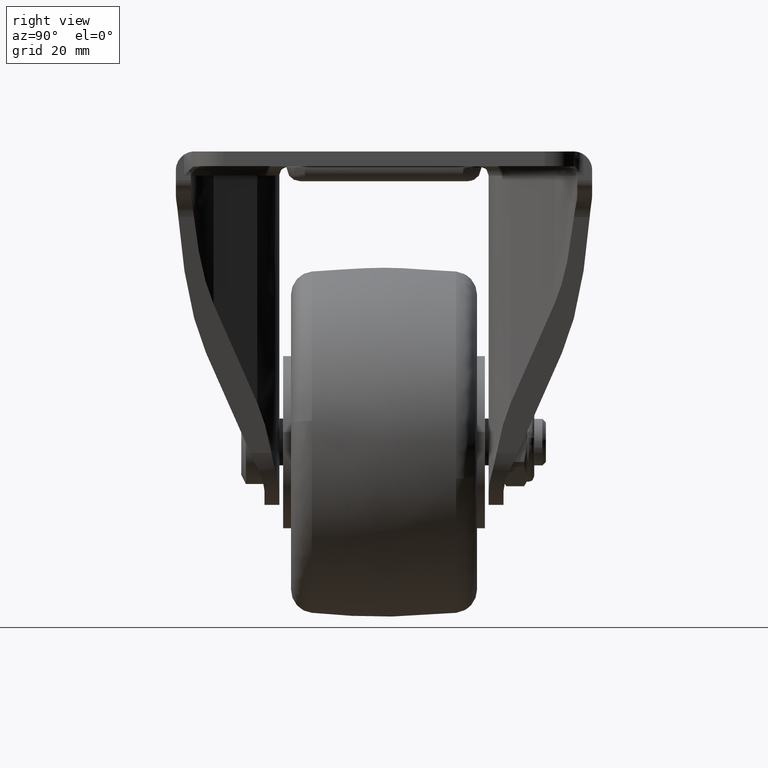
[diagram: clean part render]
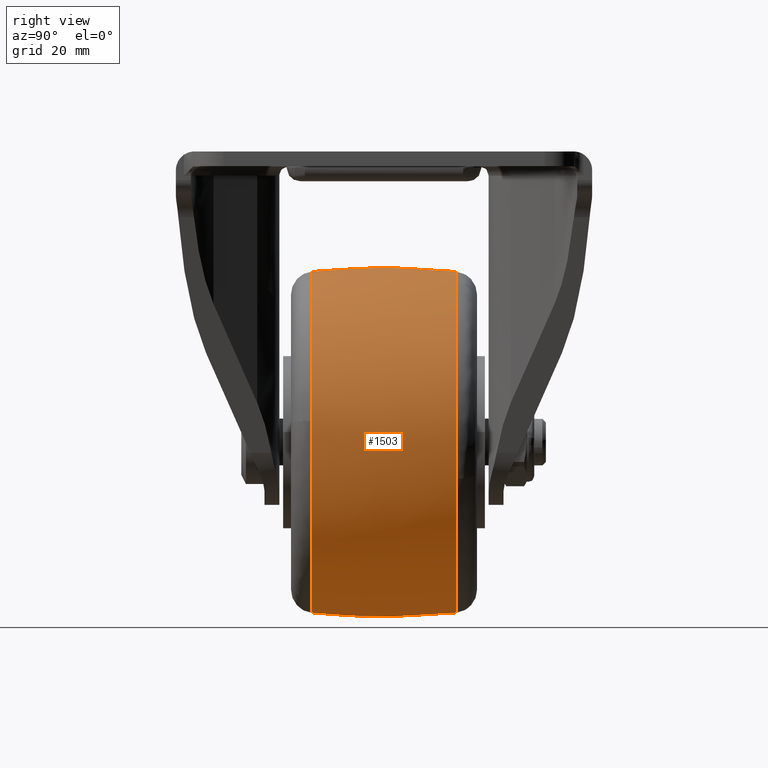
[diagram: same view with one face highlighted and labeled with its STEP entity id]
A machine part, right view. The second image highlights one B-rep face of the part: STEP entity #1503.
In plain terms, the highlighted face is a freeform B-spline surface patch.
Its self-contained STEP definition (entity closure, byte-faithful):
#1058=CARTESIAN_POINT('',(36.405869162965359,-15.517249322232800,-57.900869176845553));
#1059=VERTEX_POINT('',#1058);
#1073=CARTESIAN_POINT('',(0.0,-15.517248015191800,-25.804775498560051));
#1074=VERTEX_POINT('',#1073);
#1075=CARTESIAN_POINT('',(0.0,-15.517248015191800,-25.804775498560051));
#1076=CARTESIAN_POINT('',(32.351191039125787,-15.517247881439276,-25.804775659839130));
#1077=CARTESIAN_POINT('',(36.405869162965359,-15.517249322232800,-57.900869176845546));
#1085=(BOUNDED_CURVE()B_SPLINE_CURVE(2,(#1075,#1076,#1077),.UNSPECIFIED.,.F.,.U.)B_SPLINE_CURVE_WITH_KNOTS((3,3),(0.0,0.228321257227900),.UNSPECIFIED.)CURVE()GEOMETRIC_REPRESENTATION_ITEM()RATIONAL_B_SPLINE_CURVE((1.0,0.732505008187944,0.953608359037452))REPRESENTATION_ITEM(''));
#1086=EDGE_CURVE('',#1074,#1059,#1085,.T.);
#1088=CARTESIAN_POINT('',(-36.449793876648862,-15.517253867070529,-66.736978037823619));
#1089=VERTEX_POINT('',#1088);
#1090=CARTESIAN_POINT('',(-36.449793876648862,-15.517253867070529,-66.736978037823619));
#1091=CARTESIAN_POINT('',(-36.695223912469523,-15.517253716143598,-64.625597341269938));
#1092=CARTESIAN_POINT('',(-36.695223929979399,-15.517253546656450,-62.499999933572582));
#1093=CARTESIAN_POINT('',(-36.695224232260806,-15.517250620717078,-25.804775467270272));
#1094=CARTESIAN_POINT('',(0.0,-15.517248015191800,-25.804775498560051));
#1102=(BOUNDED_CURVE()B_SPLINE_CURVE(2,(#1090,#1091,#1092,#1093,#1094),.UNSPECIFIED.,.F.,.U.)B_SPLINE_CURVE_WITH_KNOTS((3,2,3),(0.730000035775448,0.750000000000000,1.0),.UNSPECIFIED.)CURVE()GEOMETRIC_REPRESENTATION_ITEM()RATIONAL_B_SPLINE_CURVE((0.956886188605427,0.976568584408469,1.0,0.707106781186548,1.0))REPRESENTATION_ITEM(''));
#1103=EDGE_CURVE('',#1089,#1074,#1102,.T.);
#1105=CARTESIAN_POINT('',(0.0,-15.517251615525330,-99.195224126982296));
#1106=VERTEX_POINT('',#1105);
#1120=CARTESIAN_POINT('',(12.993981891003260,-15.517251239581840,-96.817571707790449));
#1121=VERTEX_POINT('',#1120);
#1122=CARTESIAN_POINT('',(12.993981891003266,-15.517251239581846,-96.817571707790449));
#1123=CARTESIAN_POINT('',(6.714523171413977,-15.517251485874077,-99.195222960756027));
#1124=CARTESIAN_POINT('',(0.0,-15.517251615525330,-99.195224126982296));
#1132=(BOUNDED_CURVE()B_SPLINE_CURVE(2,(#1122,#1123,#1124),.UNSPECIFIED.,.F.,.U.)B_SPLINE_CURVE_WITH_KNOTS((3,3),(0.439864366935184,0.500000000000000),.UNSPECIFIED.)CURVE()GEOMETRIC_REPRESENTATION_ITEM()RATIONAL_B_SPLINE_CURVE((0.892987466017451,0.929546723465045,1.0))REPRESENTATION_ITEM(''));
#1133=EDGE_CURVE('',#1121,#1106,#1132,.T.);
#1184=CARTESIAN_POINT('',(36.405869162965359,-15.517249322232800,-57.900869176845546));
#1185=CARTESIAN_POINT('',(36.695222014820310,-15.517249434924160,-60.191332283339115));
#1186=CARTESIAN_POINT('',(36.695222087570322,-15.517249548538340,-62.499999913662421));
#1187=CARTESIAN_POINT('',(36.695222886182009,-15.517250795735674,-87.843351047338032));
#1188=CARTESIAN_POINT('',(12.993981891003266,-15.517251239581846,-96.817571707790449));
#1196=(BOUNDED_CURVE()B_SPLINE_CURVE(2,(#1184,#1185,#1186,#1187,#1188),.UNSPECIFIED.,.F.,.U.)B_SPLINE_CURVE_WITH_KNOTS((3,2,3),(0.228321257227900,0.250000000000000,0.439864366935184),.UNSPECIFIED.)CURVE()GEOMETRIC_REPRESENTATION_ITEM()RATIONAL_B_SPLINE_CURVE((0.953608359037452,0.974601772998603,1.0,0.777560057721503,0.892987466017451))REPRESENTATION_ITEM(''));
#1197=EDGE_CURVE('',#1059,#1121,#1196,.T.);
#1226=CARTESIAN_POINT('',(35.840523833993487,15.517243523845330,-70.373756215115435));
#1227=VERTEX_POINT('',#1226);
#1228=CARTESIAN_POINT('',(0.0,15.517244941485520,-99.195222311844901));
#1229=VERTEX_POINT('',#1228);
#1230=CARTESIAN_POINT('',(35.840523833993494,15.517243523845337,-70.373756215115435));
#1231=CARTESIAN_POINT('',(29.508776406267614,15.517244941485522,-99.195222311844901));
#1232=CARTESIAN_POINT('',(0.0,15.517244941485520,-99.195222311844901));
#1240=(BOUNDED_CURVE()B_SPLINE_CURVE(2,(#1230,#1231,#1232),.UNSPECIFIED.,.F.,.U.)B_SPLINE_CURVE_WITH_KNOTS((3,3),(0.286726874110098,0.500000000000000),.UNSPECIFIED.)CURVE()GEOMETRIC_REPRESENTATION_ITEM()RATIONAL_B_SPLINE_CURVE((0.926585914067485,0.750134990686800,1.0))REPRESENTATION_ITEM(''));
#1241=EDGE_CURVE('',#1227,#1229,#1240,.T.);
#1243=CARTESIAN_POINT('',(-36.449792078363529,15.517247110264440,-66.736977862260062));
#1244=VERTEX_POINT('',#1243);
#1258=CARTESIAN_POINT('',(-36.509947206247929,15.517246384845301,-58.817204718405861));
#1259=VERTEX_POINT('',#1258);
#1260=CARTESIAN_POINT('',(-36.449792078363529,15.517247110264440,-66.736977862260062));
#1261=CARTESIAN_POINT('',(-36.695221735445934,15.517246932747428,-64.625597420147386));
#1262=CARTESIAN_POINT('',(-36.695221389700812,15.517246736933870,-62.500000267480942));
#1263=CARTESIAN_POINT('',(-36.695221089424905,15.517246566871908,-60.653942134192192));
#1264=CARTESIAN_POINT('',(-36.509947206247929,15.517246384845294,-58.817204718405861));
#1272=(BOUNDED_CURVE()B_SPLINE_CURVE(2,(#1260,#1261,#1262,#1263,#1264),.UNSPECIFIED.,.F.,.U.)B_SPLINE_CURVE_WITH_KNOTS((3,2,3),(0.730000035622184,0.750000000000000,0.767423442782457),.UNSPECIFIED.)CURVE()GEOMETRIC_REPRESENTATION_ITEM()RATIONAL_B_SPLINE_CURVE((0.956886188303766,0.976568584228909,1.0,0.979587167042536,0.962019628701570))REPRESENTATION_ITEM(''));
#1273=EDGE_CURVE('',#1244,#1259,#1272,.T.);
#1367=CARTESIAN_POINT('',(0.0,15.517241397116400,-25.804779828798051));
#1368=VERTEX_POINT('',#1367);
#1369=CARTESIAN_POINT('',(0.0,15.517241397116400,-25.804779828798051));
#1370=CARTESIAN_POINT('',(36.695220171201946,15.517241397116408,-25.804779828798054));
#1371=CARTESIAN_POINT('',(36.695220171201953,15.517243169300960,-62.500001070321481));
#1372=CARTESIAN_POINT('',(36.695220171201946,15.517243361671600,-66.483267300864668));
#1373=CARTESIAN_POINT('',(35.840523833993494,15.517243523845337,-70.373756215115435));
#1381=(BOUNDED_CURVE()B_SPLINE_CURVE(2,(#1369,#1370,#1371,#1372,#1373),.UNSPECIFIED.,.F.,.U.)B_SPLINE_CURVE_WITH_KNOTS((3,2,3),(0.0,0.250000000000000,0.286726874110098),.UNSPECIFIED.)CURVE()GEOMETRIC_REPRESENTATION_ITEM()RATIONAL_B_SPLINE_CURVE((1.0,0.707106781186548,1.0,0.956971790499748,0.926585914067485))REPRESENTATION_ITEM(''));
#1382=EDGE_CURVE('',#1368,#1227,#1381,.T.);
#1416=CARTESIAN_POINT('',(-36.509947206247929,15.517246384845294,-58.817204718405861));
#1417=CARTESIAN_POINT('',(-33.179949842762490,15.517243640656181,-25.804779972441864));
#1418=CARTESIAN_POINT('',(0.0,15.517241397116400,-25.804779828798051));
#1426=(BOUNDED_CURVE()B_SPLINE_CURVE(2,(#1416,#1417,#1418),.UNSPECIFIED.,.F.,.U.)B_SPLINE_CURVE_WITH_KNOTS((3,3),(0.767423442782457,1.0),.UNSPECIFIED.)CURVE()GEOMETRIC_REPRESENTATION_ITEM()RATIONAL_B_SPLINE_CURVE((0.962019628701570,0.727519614144011,1.0))REPRESENTATION_ITEM(''));
#1427=EDGE_CURVE('',#1259,#1368,#1426,.T.);
#1432=CARTESIAN_POINT('',(-36.282641195028837,17.057819787561680,-66.717554832738287));
#1433=CARTESIAN_POINT('',(-38.222043254461973,-0.000003390297983,-66.942994168436528));
#1434=CARTESIAN_POINT('',(-36.282640434073301,-17.057826480471185,-66.717554744283532));
#1435=CARTESIAN_POINT('',(-36.526946503292031,17.057819787561687,-64.615853208624685));
#1436=CARTESIAN_POINT('',(-38.479407320367116,-0.000003390297982,-64.728951096074709));
#1437=CARTESIAN_POINT('',(-36.526945737212664,-17.057826480471181,-64.615853164248904));
#1438=CARTESIAN_POINT('',(-36.526946503292031,17.057819787561687,-62.500000000000014));
#1439=CARTESIAN_POINT('',(-38.479407320367109,-0.000003390297979,-62.500000000000000));
#1440=CARTESIAN_POINT('',(-36.526945737212671,-17.057826480471181,-62.500000000000014));
#1441=CARTESIAN_POINT('',(-36.526946503292031,17.057819787561687,-25.973053496707976));
#1442=CARTESIAN_POINT('',(-38.479407320367123,-0.000003390297980,-24.020592679632884));
#1443=CARTESIAN_POINT('',(-36.526945737212678,-17.057826480471185,-25.973054262787322));
#1444=CARTESIAN_POINT('',(0.0,17.057819787561687,-25.973053496707969));
#1445=CARTESIAN_POINT('',(0.0,-0.000003390297979,-24.020592679632884));
#1446=CARTESIAN_POINT('',(0.0,-17.057826480471181,-25.973054262787322));
#1447=CARTESIAN_POINT('',(36.526946503292031,17.057819787561687,-25.973053496707976));
#1448=CARTESIAN_POINT('',(38.479407320367123,-0.000003390297980,-24.020592679632884));
#1449=CARTESIAN_POINT('',(36.526945737212678,-17.057826480471185,-25.973054262787322));
#1450=CARTESIAN_POINT('',(36.526946503292031,17.057819787561687,-62.500000000000014));
#1451=CARTESIAN_POINT('',(38.479407320367109,-0.000003390297979,-62.500000000000000));
#1452=CARTESIAN_POINT('',(36.526945737212671,-17.057826480471181,-62.500000000000014));
#1453=CARTESIAN_POINT('',(36.526946503292031,17.057819787561687,-99.026946503292024));
#1454=CARTESIAN_POINT('',(38.479407320367123,-0.000003390297980,-100.979407320367120));
#1455=CARTESIAN_POINT('',(36.526945737212678,-17.057826480471185,-99.026945737212685));
#1456=CARTESIAN_POINT('',(0.0,17.057819787561687,-99.026946503292038));
#1457=CARTESIAN_POINT('',(0.0,-0.000003390297979,-100.979407320367100));
#1458=CARTESIAN_POINT('',(0.0,-17.057826480471181,-99.026945737212671));
#1466=(BOUNDED_SURFACE()B_SPLINE_SURFACE(2,2,((#1432,#1435,#1438,#1441,#1444,#1447,#1450,#1453,#1456),(#1433,#1436,#1439,#1442,#1445,#1448,#1451,#1454,#1457),(#1434,#1437,#1440,#1443,#1446,#1449,#1452,#1455,#1458)),.UNSPECIFIED.,.F.,.F.,.U.)B_SPLINE_SURFACE_WITH_KNOTS((3,3),(3,2,2,2,3),(0.0,34.226660885250212),(0.0,4.970561711536941,67.102596067501125,129.234630423465290,191.366664779429500),.UNSPECIFIED.)GEOMETRIC_REPRESENTATION_ITEM()RATIONAL_B_SPLINE_SURFACE(((0.839999910101653,0.857278070373645,0.877847307975337,0.620731784315716,0.877847307975337,0.620731784315716,0.877847307975337,0.620731784315716,0.877847307975337),(0.834550810027260,0.851716886448658,0.872152690900182,0.616705081965613,0.872152690900182,0.616705081965613,0.872152690900182,0.616705081965613,0.872152690900182),(0.839999912253655,0.857278072569913,0.877847310224300,0.620731785905974,0.877847310224300,0.620731785905974,0.877847310224300,0.620731785905974,0.877847310224300)))REPRESENTATION_ITEM('')SURFACE());
#1467=ORIENTED_EDGE('',*,*,#1103,.T.);
#1468=ORIENTED_EDGE('',*,*,#1086,.T.);
#1469=ORIENTED_EDGE('',*,*,#1197,.T.);
#1470=ORIENTED_EDGE('',*,*,#1133,.T.);
#1471=CARTESIAN_POINT('',(0.0,15.517244941485517,-99.195222311844915));
#1472=CARTESIAN_POINT('',(0.0,-0.000003371721056,-100.809115346414560));
#1473=CARTESIAN_POINT('',(0.0,-15.517251615525325,-99.195224126982296));
#1481=(BOUNDED_CURVE()B_SPLINE_CURVE(2,(#1471,#1472,#1473),.UNSPECIFIED.,.F.,.U.)B_SPLINE_CURVE_WITH_KNOTS((3,3),(0.431391331764442,0.568608696755920),.UNSPECIFIED.)CURVE()GEOMETRIC_REPRESENTATION_ITEM()RATIONAL_B_SPLINE_CURVE((0.877353574678528,0.872646424343099,0.877353576635273))REPRESENTATION_ITEM(''));
#1482=EDGE_CURVE('',#1229,#1106,#1481,.T.);
#1483=ORIENTED_EDGE('',*,*,#1482,.F.);
#1484=ORIENTED_EDGE('',*,*,#1241,.F.);
#1485=ORIENTED_EDGE('',*,*,#1382,.F.);
#1486=ORIENTED_EDGE('',*,*,#1427,.F.);
#1487=ORIENTED_EDGE('',*,*,#1273,.F.);
#1488=CARTESIAN_POINT('',(-36.449792078363522,15.517247110264439,-66.736977862260062));
#1489=CARTESIAN_POINT('',(-38.052891270136683,-0.000003413551862,-66.923324814073879));
#1490=CARTESIAN_POINT('',(-36.449793876648855,-15.517253867070533,-66.736978037823619));
#1498=(BOUNDED_CURVE()B_SPLINE_CURVE(2,(#1488,#1489,#1490),.UNSPECIFIED.,.F.,.U.)B_SPLINE_CURVE_WITH_KNOTS((3,3),(0.431391322123576,0.568608706764706),.UNSPECIFIED.)CURVE()GEOMETRIC_REPRESENTATION_ITEM()RATIONAL_B_SPLINE_CURVE((0.839527456987766,0.835023248897621,0.839527458884302))REPRESENTATION_ITEM(''));
#1499=EDGE_CURVE('',#1244,#1089,#1498,.T.);
#1500=ORIENTED_EDGE('',*,*,#1499,.T.);
#1501=EDGE_LOOP('',(#1467,#1468,#1469,#1470,#1483,#1484,#1485,#1486,#1487,#1500));
#1502=FACE_OUTER_BOUND('',#1501,.T.);
#1503=ADVANCED_FACE('',(#1502),#1466,.T.);